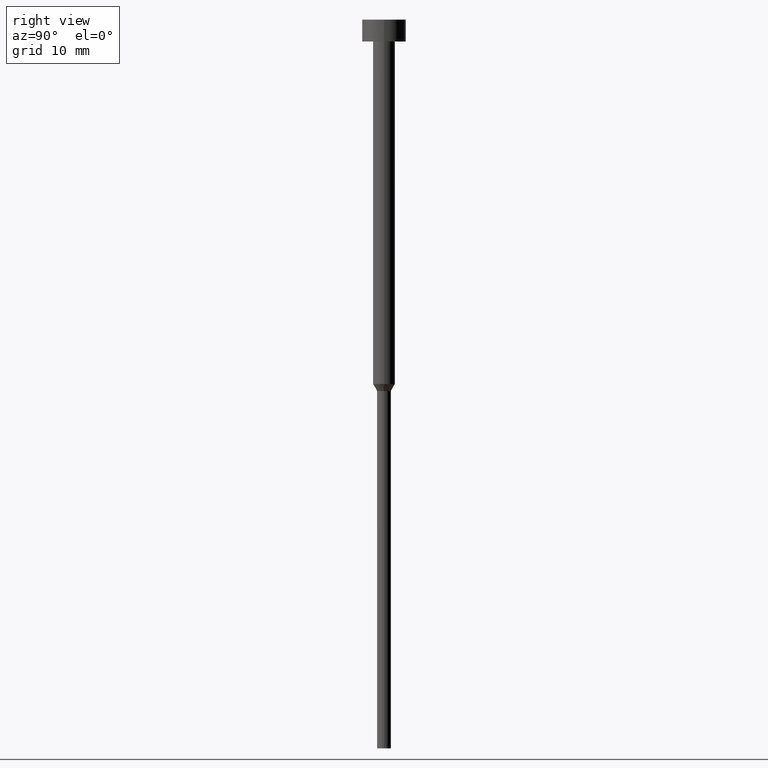
[diagram: clean part render]
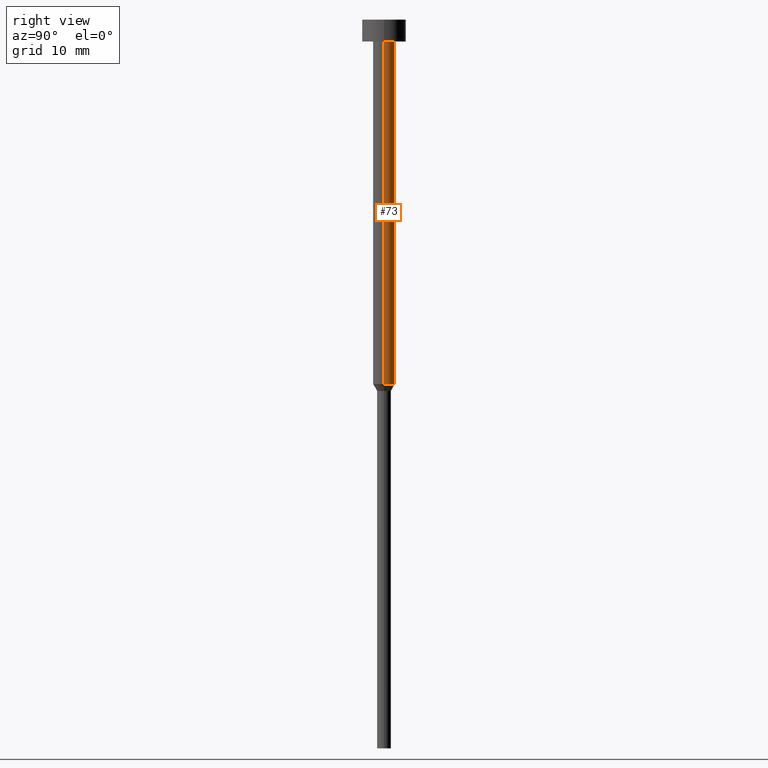
[diagram: same view with one face highlighted and labeled with its STEP entity id]
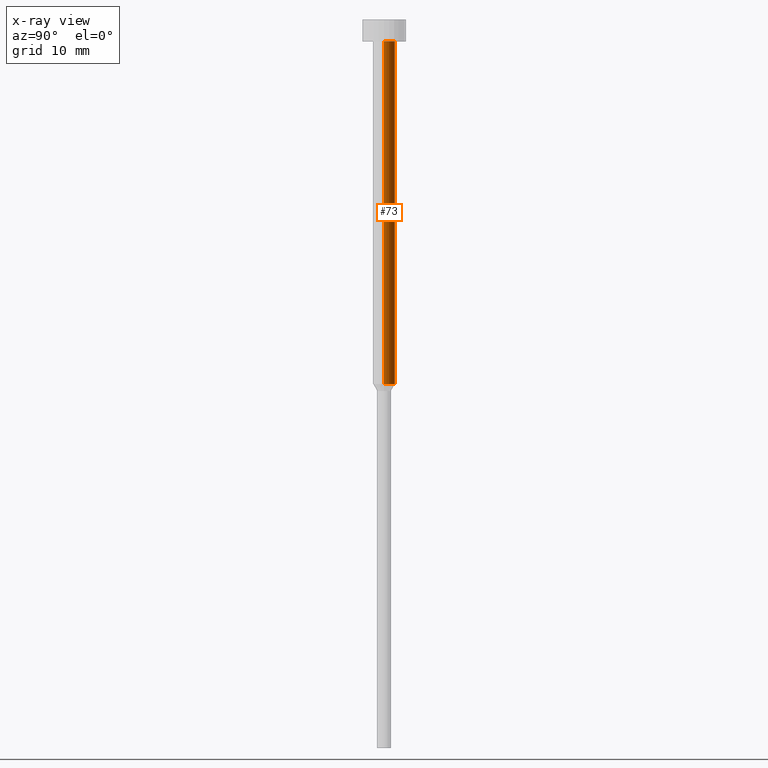
[diagram: x-ray of the same camera — body ghosted, the highlighted face saturated]
A machine part, right view. The second image highlights one B-rep face of the part: STEP entity #73.
The next image is the same camera in x-ray: the body ghosted, the highlighted face saturated — about 0% of this face is hidden behind the body in this view.
In plain terms, the highlighted cylindrical surface (edge-blend (fillet) strip) has radius 1.5 mm, axis along (-0, -0, 1).
Its self-contained STEP definition (entity closure, byte-faithful):
#4 = DIRECTION ( 'NONE',  ( -0.000000000000000000, -0.000000000000000000, 1.000000000000000000 ) ) ;
#19 = VECTOR ( 'NONE', #59, 1000.000000000000000 ) ;
#27 = AXIS2_PLACEMENT_3D ( 'NONE', #185, #76, #213 ) ;
#34 = DIRECTION ( 'NONE',  ( 1.000000000000000000, 0.000000000000000000, 0.000000000000000000 ) ) ;
#42 = VERTEX_POINT ( 'NONE', #319 ) ;
#56 = CARTESIAN_POINT ( 'NONE',  ( 0.000000000000000000, 0.000000000000000000, -50.00000000000000000 ) ) ;
#59 = DIRECTION ( 'NONE',  ( -0.000000000000000000, -0.000000000000000000, 1.000000000000000000 ) ) ;
#65 = ORIENTED_EDGE ( 'NONE', *, *, #313, .F. ) ;
#73 = ADVANCED_FACE ( 'NONE', ( #320 ), #291, .T. ) ;
#74 = ORIENTED_EDGE ( 'NONE', *, *, #205, .F. ) ;
#76 = DIRECTION ( 'NONE',  ( -0.000000000000000000, -0.000000000000000000, 1.000000000000000000 ) ) ;
#111 = LINE ( 'NONE', #190, #279 ) ;
#143 = VERTEX_POINT ( 'NONE', #179 ) ;
#148 = EDGE_LOOP ( 'NONE', ( #315, #312, #74, #65 ) ) ;
#152 = CIRCLE ( 'NONE', #180, 1.500000000000000000 ) ;
#174 = VERTEX_POINT ( 'NONE', #262 ) ;
#179 = CARTESIAN_POINT ( 'NONE',  ( 1.500000000000000000, 0.000000000000000000, -3.000000000000000888 ) ) ;
#180 = AXIS2_PLACEMENT_3D ( 'NONE', #56, #4, #34 ) ;
#185 = CARTESIAN_POINT ( 'NONE',  ( 0.000000000000000000, 0.000000000000000000, 0.000000000000000000 ) ) ;
#190 = CARTESIAN_POINT ( 'NONE',  ( 1.500000000000000000, 0.000000000000000000, 0.000000000000000000 ) ) ;
#191 = CIRCLE ( 'NONE', #239, 1.500000000000000000 ) ;
#205 = EDGE_CURVE ( 'NONE', #143, #174, #191, .T. ) ;
#209 = CARTESIAN_POINT ( 'NONE',  ( 0.000000000000000000, 0.000000000000000000, -3.000000000000000888 ) ) ;
#213 = DIRECTION ( 'NONE',  ( 1.000000000000000000, 0.000000000000000000, 0.000000000000000000 ) ) ;
#230 = EDGE_CURVE ( 'NONE', #344, #174, #299, .T. ) ;
#239 = AXIS2_PLACEMENT_3D ( 'NONE', #209, #322, #240 ) ;
#240 = DIRECTION ( 'NONE',  ( 1.000000000000000000, 0.000000000000000000, 0.000000000000000000 ) ) ;
#246 = CARTESIAN_POINT ( 'NONE',  ( -1.500000000000000000, 1.836970198721029934E-16, 0.000000000000000000 ) ) ;
#262 = CARTESIAN_POINT ( 'NONE',  ( -1.500000000000000000, 1.836970198721029934E-16, -3.000000000000000888 ) ) ;
#271 = CARTESIAN_POINT ( 'NONE',  ( -1.500000000000000000, 1.836970198721029934E-16, -50.00000000000000000 ) ) ;
#279 = VECTOR ( 'NONE', #300, 1000.000000000000000 ) ;
#291 = CYLINDRICAL_SURFACE ( 'NONE', #27, 1.500000000000000000 ) ;
#299 = LINE ( 'NONE', #246, #19 ) ;
#300 = DIRECTION ( 'NONE',  ( -0.000000000000000000, -0.000000000000000000, 1.000000000000000000 ) ) ;
#312 = ORIENTED_EDGE ( 'NONE', *, *, #230, .T. ) ;
#313 = EDGE_CURVE ( 'NONE', #42, #143, #111, .T. ) ;
#315 = ORIENTED_EDGE ( 'NONE', *, *, #318, .T. ) ;
#318 = EDGE_CURVE ( 'NONE', #42, #344, #152, .T. ) ;
#319 = CARTESIAN_POINT ( 'NONE',  ( 1.500000000000000000, 0.000000000000000000, -50.00000000000000000 ) ) ;
#320 = FACE_OUTER_BOUND ( 'NONE', #148, .T. ) ;
#322 = DIRECTION ( 'NONE',  ( -0.000000000000000000, -0.000000000000000000, 1.000000000000000000 ) ) ;
#344 = VERTEX_POINT ( 'NONE', #271 ) ;